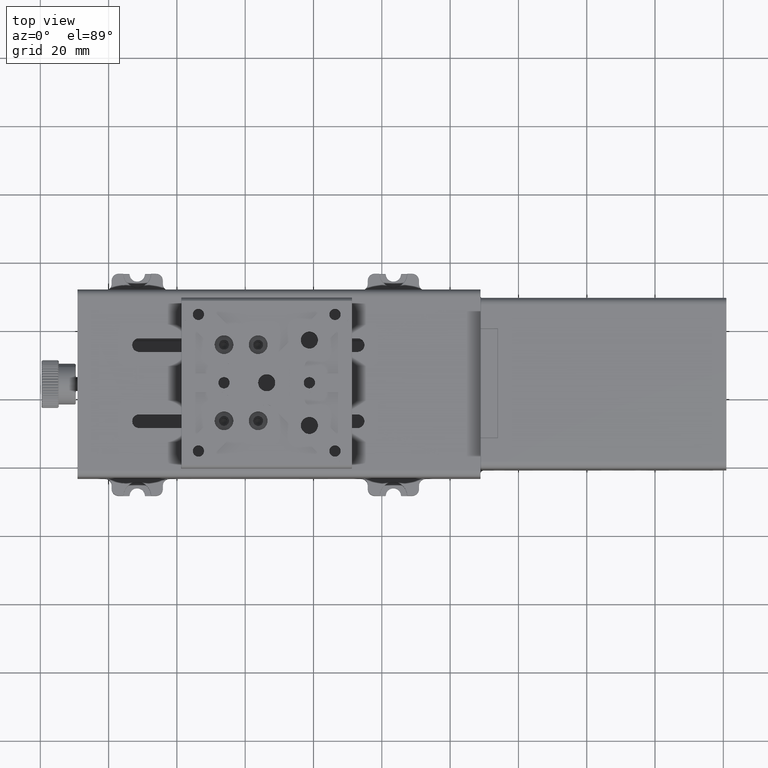
[diagram: clean part render]
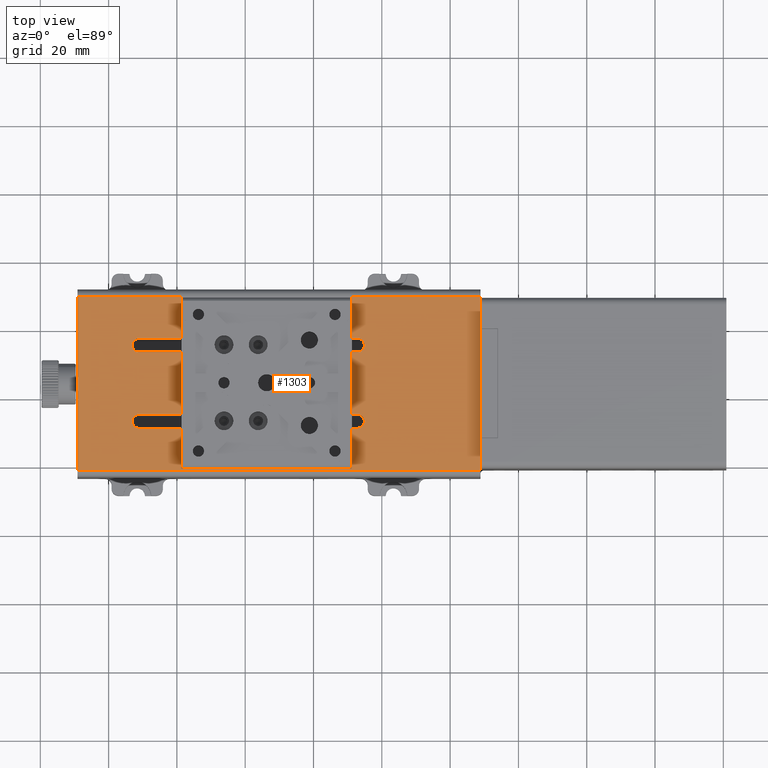
[diagram: same view with one face highlighted and labeled with its STEP entity id]
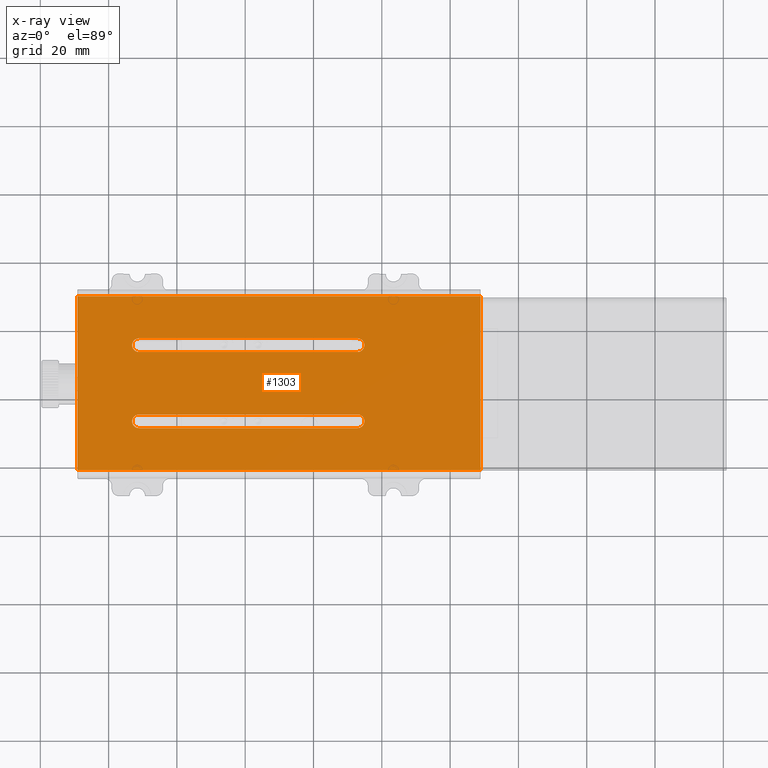
[diagram: x-ray of the same camera — body ghosted, the highlighted face saturated]
A machine part, top view. The second image highlights one B-rep face of the part: STEP entity #1303.
The next image is the same camera in x-ray: the body ghosted, the highlighted face saturated — about 0% of this face is hidden behind the body in this view.
In plain terms, the highlighted planar face has unit normal (0, 0, 1).
Its self-contained STEP definition (entity closure, byte-faithful):
#585 = VERTEX_POINT ( 'NONE', #40383 ) ;
#1020 = CIRCLE ( 'NONE', #28741, 2.000000000000000000 ) ;
#1131 = EDGE_CURVE ( 'NONE', #45417, #53325, #15099, .T. ) ;
#1195 = AXIS2_PLACEMENT_3D ( 'NONE', #25789, #12810, #53101 ) ;
#1303 = ADVANCED_FACE ( 'NONE', ( #59189, #52688, #26665 ), #27537, .T. ) ;
#3000 = CARTESIAN_POINT ( 'NONE',  ( -73.11011235955059817, 13.10842696629214110, 26.00000000000000000 ) ) ;
#3509 = EDGE_CURVE ( 'NONE', #38684, #72967, #11630, .T. ) ;
#3711 = CARTESIAN_POINT ( 'NONE',  ( 28.88988764044945157, -1.241573033707860096, 26.00000000000000000 ) ) ;
#4554 = CIRCLE ( 'NONE', #25326, 2.000000000000001776 ) ;
#5607 = ORIENTED_EDGE ( 'NONE', *, *, #1131, .F. ) ;
#6762 = VECTOR ( 'NONE', #54107, 1000.000000000000000 ) ;
#6854 = VERTEX_POINT ( 'NONE', #9127 ) ;
#8588 = CARTESIAN_POINT ( 'NONE',  ( -73.11011235955059817, 11.10842696629211979, 26.00000000000000000 ) ) ;
#8781 = CARTESIAN_POINT ( 'NONE',  ( -7.110112359550540440, 33.40842696629215425, 26.00000000000000000 ) ) ;
#9127 = CARTESIAN_POINT ( 'NONE',  ( -71.11011235955059817, 15.10842696629215176, 26.00000000000000000 ) ) ;
#9423 = AXIS2_PLACEMENT_3D ( 'NONE', #51025, #50177, #64041 ) ;
#9675 = VECTOR ( 'NONE', #11105, 1000.000000000000000 ) ;
#9849 = VERTEX_POINT ( 'NONE', #73211 ) ;
#10007 = VERTEX_POINT ( 'NONE', #37182 ) ;
#10125 = CIRCLE ( 'NONE', #28099, 2.000000000000001776 ) ;
#10864 = CARTESIAN_POINT ( 'NONE',  ( -71.11011235955059817, 37.40842696629215425, 26.00000000000000000 ) ) ;
#10898 = CARTESIAN_POINT ( 'NONE',  ( -73.11011235955059817, 35.40842696629214714, 26.00000000000000000 ) ) ;
#11105 = DIRECTION ( 'NONE',  ( -1.000000000000000000, 0.000000000000000000, 0.000000000000000000 ) ) ;
#11630 = LINE ( 'NONE', #31597, #24446 ) ;
#12002 = CARTESIAN_POINT ( 'NONE',  ( -89.11011235955059817, -1.241573033707860096, 26.00000000000000000 ) ) ;
#12446 = EDGE_CURVE ( 'NONE', #77746, #6854, #10125, .T. ) ;
#12512 = ORIENTED_EDGE ( 'NONE', *, *, #54234, .T. ) ;
#12810 = DIRECTION ( 'NONE',  ( 0.000000000000000000, 0.000000000000000000, 1.000000000000000000 ) ) ;
#13312 = ORIENTED_EDGE ( 'NONE', *, *, #51359, .F. ) ;
#13778 = CARTESIAN_POINT ( 'NONE',  ( -89.11011235955059817, 49.75842696629209883, 26.00000000000000000 ) ) ;
#14416 = DIRECTION ( 'NONE',  ( -1.000000000000000000, 0.000000000000000000, 0.000000000000000000 ) ) ;
#14800 = DIRECTION ( 'NONE',  ( 0.000000000000000000, 1.000000000000000000, 0.000000000000000000 ) ) ;
#15099 = LINE ( 'NONE', #41970, #26101 ) ;
#15281 = CARTESIAN_POINT ( 'NONE',  ( -89.11011235955059817, 49.75842696629209883, 26.00000000000000000 ) ) ;
#15289 = DIRECTION ( 'NONE',  ( 0.000000000000000000, 0.000000000000000000, -1.000000000000000000 ) ) ;
#15704 = CARTESIAN_POINT ( 'NONE',  ( -71.11011235955059817, 35.40842696629214714, 26.00000000000000000 ) ) ;
#15968 = LINE ( 'NONE', #63646, #41673 ) ;
#16320 = EDGE_CURVE ( 'NONE', #32057, #6854, #64852, .T. ) ;
#16647 = CIRCLE ( 'NONE', #54028, 2.000000000000000000 ) ;
#17087 = CARTESIAN_POINT ( 'NONE',  ( -7.110112359550540440, 13.10842696629214110, 26.00000000000000000 ) ) ;
#17540 = CIRCLE ( 'NONE', #21679, 2.000000000000000000 ) ;
#21062 = DIRECTION ( 'NONE',  ( 1.000000000000000000, 0.000000000000000000, 0.000000000000000000 ) ) ;
#21458 = CARTESIAN_POINT ( 'NONE',  ( -7.110112359550540440, 15.10842696629215176, 26.00000000000000000 ) ) ;
#21679 = AXIS2_PLACEMENT_3D ( 'NONE', #17087, #43539, #70406 ) ;
#21722 = LINE ( 'NONE', #47333, #47298 ) ;
#21996 = EDGE_CURVE ( 'NONE', #32057, #50015, #1020, .T. ) ;
#22335 = DIRECTION ( 'NONE',  ( 0.000000000000000000, 0.000000000000000000, -1.000000000000000000 ) ) ;
#22427 = ORIENTED_EDGE ( 'NONE', *, *, #67833, .F. ) ;
#22859 = EDGE_CURVE ( 'NONE', #585, #53325, #52354, .T. ) ;
#24446 = VECTOR ( 'NONE', #57584, 1000.000000000000000 ) ;
#24522 = CARTESIAN_POINT ( 'NONE',  ( -73.11011235955059817, 15.10842696629215176, 26.00000000000000000 ) ) ;
#25185 = DIRECTION ( 'NONE',  ( 1.000000000000000000, 0.000000000000000000, 0.000000000000000000 ) ) ;
#25326 = AXIS2_PLACEMENT_3D ( 'NONE', #15704, #15289, #41741 ) ;
#25789 = CARTESIAN_POINT ( 'NONE',  ( -89.11011235955059817, 49.25842696629209883, 26.00000000000000000 ) ) ;
#25896 = VECTOR ( 'NONE', #35363, 1000.000000000000000 ) ;
#26019 = EDGE_CURVE ( 'NONE', #72967, #10007, #21722, .T. ) ;
#26101 = VECTOR ( 'NONE', #35054, 1000.000000000000000 ) ;
#26665 = FACE_OUTER_BOUND ( 'NONE', #61552, .T. ) ;
#26792 = ORIENTED_EDGE ( 'NONE', *, *, #84550, .T. ) ;
#27433 = ORIENTED_EDGE ( 'NONE', *, *, #33283, .T. ) ;
#27537 = PLANE ( 'NONE',  #1195 ) ;
#28099 = AXIS2_PLACEMENT_3D ( 'NONE', #64211, #78064, #25185 ) ;
#28741 = AXIS2_PLACEMENT_3D ( 'NONE', #81713, #22335, #21062 ) ;
#28838 = ORIENTED_EDGE ( 'NONE', *, *, #61480, .T. ) ;
#29180 = CARTESIAN_POINT ( 'NONE',  ( -71.11011235955059817, 13.10842696629214110, 26.00000000000000000 ) ) ;
#29853 = ORIENTED_EDGE ( 'NONE', *, *, #42467, .T. ) ;
#31020 = ORIENTED_EDGE ( 'NONE', *, *, #22859, .T. ) ;
#31597 = CARTESIAN_POINT ( 'NONE',  ( -89.11011235955059817, -1.241573033707860096, 26.00000000000000000 ) ) ;
#32057 = VERTEX_POINT ( 'NONE', #21458 ) ;
#32200 = ORIENTED_EDGE ( 'NONE', *, *, #32515, .T. ) ;
#32515 = EDGE_CURVE ( 'NONE', #9849, #77746, #63216, .T. ) ;
#33283 = EDGE_CURVE ( 'NONE', #37190, #38684, #62221, .T. ) ;
#34839 = DIRECTION ( 'NONE',  ( 0.000000000000000000, 0.000000000000000000, -1.000000000000000000 ) ) ;
#35054 = DIRECTION ( 'NONE',  ( 1.000000000000000000, 0.000000000000000000, 0.000000000000000000 ) ) ;
#35363 = DIRECTION ( 'NONE',  ( 1.224646799147351975E-16, -1.000000000000000000, 0.000000000000000000 ) ) ;
#35408 = VERTEX_POINT ( 'NONE', #10864 ) ;
#37182 = CARTESIAN_POINT ( 'NONE',  ( 28.88988764044945157, 49.75842696629209883, 26.00000000000000000 ) ) ;
#37190 = VERTEX_POINT ( 'NONE', #13778 ) ;
#37657 = VERTEX_POINT ( 'NONE', #10898 ) ;
#38260 = CARTESIAN_POINT ( 'NONE',  ( -7.110112359550540440, 11.10842696629211979, 26.00000000000000000 ) ) ;
#38684 = VERTEX_POINT ( 'NONE', #12002 ) ;
#40383 = CARTESIAN_POINT ( 'NONE',  ( -5.110112359550540440, 35.40842696629214714, 26.00000000000000000 ) ) ;
#41673 = VECTOR ( 'NONE', #81866, 1000.000000000000000 ) ;
#41741 = DIRECTION ( 'NONE',  ( 1.000000000000000000, 0.000000000000000000, 0.000000000000000000 ) ) ;
#41856 = CARTESIAN_POINT ( 'NONE',  ( -89.11011235955059817, 49.25842696629209883, 26.00000000000000000 ) ) ;
#41970 = CARTESIAN_POINT ( 'NONE',  ( -73.11011235955059817, 33.40842696629215425, 26.00000000000000000 ) ) ;
#42467 = EDGE_CURVE ( 'NONE', #45417, #37657, #82499, .T. ) ;
#43539 = DIRECTION ( 'NONE',  ( 0.000000000000000000, 0.000000000000000000, -1.000000000000000000 ) ) ;
#44791 = ORIENTED_EDGE ( 'NONE', *, *, #16320, .F. ) ;
#45417 = VERTEX_POINT ( 'NONE', #56160 ) ;
#46321 = LINE ( 'NONE', #8588, #6762 ) ;
#47098 = DIRECTION ( 'NONE',  ( 1.000000000000000000, 0.000000000000000000, 0.000000000000000000 ) ) ;
#47298 = VECTOR ( 'NONE', #14800, 1000.000000000000000 ) ;
#47333 = CARTESIAN_POINT ( 'NONE',  ( 28.88988764044945157, 49.25842696629209883, 26.00000000000000000 ) ) ;
#47510 = DIRECTION ( 'NONE',  ( 0.000000000000000000, 0.000000000000000000, -1.000000000000000000 ) ) ;
#49203 = CARTESIAN_POINT ( 'NONE',  ( -7.110112359550540440, 37.40842696629215425, 26.00000000000000000 ) ) ;
#50015 = VERTEX_POINT ( 'NONE', #77598 ) ;
#50177 = DIRECTION ( 'NONE',  ( 0.000000000000000000, 0.000000000000000000, -1.000000000000000000 ) ) ;
#51025 = CARTESIAN_POINT ( 'NONE',  ( -7.110112359550540440, 35.40842696629214714, 26.00000000000000000 ) ) ;
#51359 = EDGE_CURVE ( 'NONE', #60071, #35408, #15968, .T. ) ;
#51702 = ORIENTED_EDGE ( 'NONE', *, *, #21996, .T. ) ;
#52354 = CIRCLE ( 'NONE', #9423, 2.000000000000000000 ) ;
#52688 = FACE_BOUND ( 'NONE', #80530, .T. ) ;
#53101 = DIRECTION ( 'NONE',  ( 1.000000000000000000, 0.000000000000000000, 0.000000000000000000 ) ) ;
#53325 = VERTEX_POINT ( 'NONE', #8781 ) ;
#53883 = DIRECTION ( 'NONE',  ( 1.000000000000000000, 0.000000000000000000, 0.000000000000000000 ) ) ;
#54028 = AXIS2_PLACEMENT_3D ( 'NONE', #73459, #74289, #67808 ) ;
#54107 = DIRECTION ( 'NONE',  ( 1.000000000000000000, 0.000000000000000000, 0.000000000000000000 ) ) ;
#54234 = EDGE_CURVE ( 'NONE', #50015, #73544, #17540, .T. ) ;
#54685 = EDGE_LOOP ( 'NONE', ( #22427, #32200, #70619, #44791, #51702, #12512 ) ) ;
#54785 = ORIENTED_EDGE ( 'NONE', *, *, #71864, .T. ) ;
#56160 = CARTESIAN_POINT ( 'NONE',  ( -71.11011235955059817, 33.40842696629215425, 26.00000000000000000 ) ) ;
#57584 = DIRECTION ( 'NONE',  ( 1.000000000000000000, 0.000000000000000000, 0.000000000000000000 ) ) ;
#59189 = FACE_BOUND ( 'NONE', #54685, .T. ) ;
#60071 = VERTEX_POINT ( 'NONE', #49203 ) ;
#61480 = EDGE_CURVE ( 'NONE', #37657, #35408, #4554, .T. ) ;
#61552 = EDGE_LOOP ( 'NONE', ( #27433, #68560, #85483, #54785 ) ) ;
#62221 = LINE ( 'NONE', #41856, #25896 ) ;
#63216 = CIRCLE ( 'NONE', #74298, 2.000000000000001776 ) ;
#63646 = CARTESIAN_POINT ( 'NONE',  ( -73.11011235955059817, 37.40842696629215425, 26.00000000000000000 ) ) ;
#64041 = DIRECTION ( 'NONE',  ( 1.000000000000000000, 0.000000000000000000, 0.000000000000000000 ) ) ;
#64211 = CARTESIAN_POINT ( 'NONE',  ( -71.11011235955059817, 13.10842696629214110, 26.00000000000000000 ) ) ;
#64852 = LINE ( 'NONE', #24522, #9675 ) ;
#65423 = VECTOR ( 'NONE', #14416, 1000.000000000000000 ) ;
#67447 = CARTESIAN_POINT ( 'NONE',  ( -71.11011235955059817, 35.40842696629214714, 26.00000000000000000 ) ) ;
#67808 = DIRECTION ( 'NONE',  ( 1.000000000000000000, 0.000000000000000000, 0.000000000000000000 ) ) ;
#67833 = EDGE_CURVE ( 'NONE', #9849, #73544, #46321, .T. ) ;
#68560 = ORIENTED_EDGE ( 'NONE', *, *, #3509, .T. ) ;
#70406 = DIRECTION ( 'NONE',  ( 1.000000000000000000, 0.000000000000000000, 0.000000000000000000 ) ) ;
#70619 = ORIENTED_EDGE ( 'NONE', *, *, #12446, .T. ) ;
#71864 = EDGE_CURVE ( 'NONE', #10007, #37190, #74657, .T. ) ;
#72967 = VERTEX_POINT ( 'NONE', #3711 ) ;
#73211 = CARTESIAN_POINT ( 'NONE',  ( -71.11011235955059817, 11.10842696629211979, 26.00000000000000000 ) ) ;
#73459 = CARTESIAN_POINT ( 'NONE',  ( -7.110112359550540440, 35.40842696629214714, 26.00000000000000000 ) ) ;
#73544 = VERTEX_POINT ( 'NONE', #38260 ) ;
#74289 = DIRECTION ( 'NONE',  ( 0.000000000000000000, 0.000000000000000000, -1.000000000000000000 ) ) ;
#74298 = AXIS2_PLACEMENT_3D ( 'NONE', #29180, #34839, #53883 ) ;
#74657 = LINE ( 'NONE', #15281, #65423 ) ;
#77598 = CARTESIAN_POINT ( 'NONE',  ( -5.110112359550540440, 13.10842696629214110, 26.00000000000000000 ) ) ;
#77746 = VERTEX_POINT ( 'NONE', #3000 ) ;
#78064 = DIRECTION ( 'NONE',  ( 0.000000000000000000, 0.000000000000000000, -1.000000000000000000 ) ) ;
#80530 = EDGE_LOOP ( 'NONE', ( #29853, #28838, #13312, #26792, #31020, #5607 ) ) ;
#81076 = AXIS2_PLACEMENT_3D ( 'NONE', #67447, #47510, #47098 ) ;
#81713 = CARTESIAN_POINT ( 'NONE',  ( -7.110112359550540440, 13.10842696629214110, 26.00000000000000000 ) ) ;
#81866 = DIRECTION ( 'NONE',  ( -1.000000000000000000, 0.000000000000000000, 0.000000000000000000 ) ) ;
#82499 = CIRCLE ( 'NONE', #81076, 2.000000000000001776 ) ;
#84550 = EDGE_CURVE ( 'NONE', #60071, #585, #16647, .T. ) ;
#85483 = ORIENTED_EDGE ( 'NONE', *, *, #26019, .T. ) ;